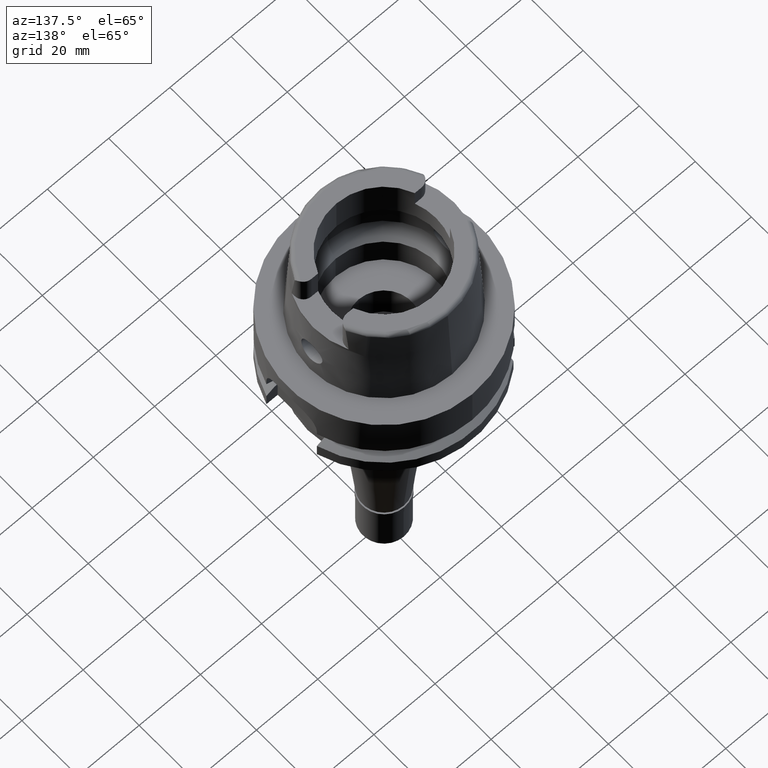
[diagram: clean part render]
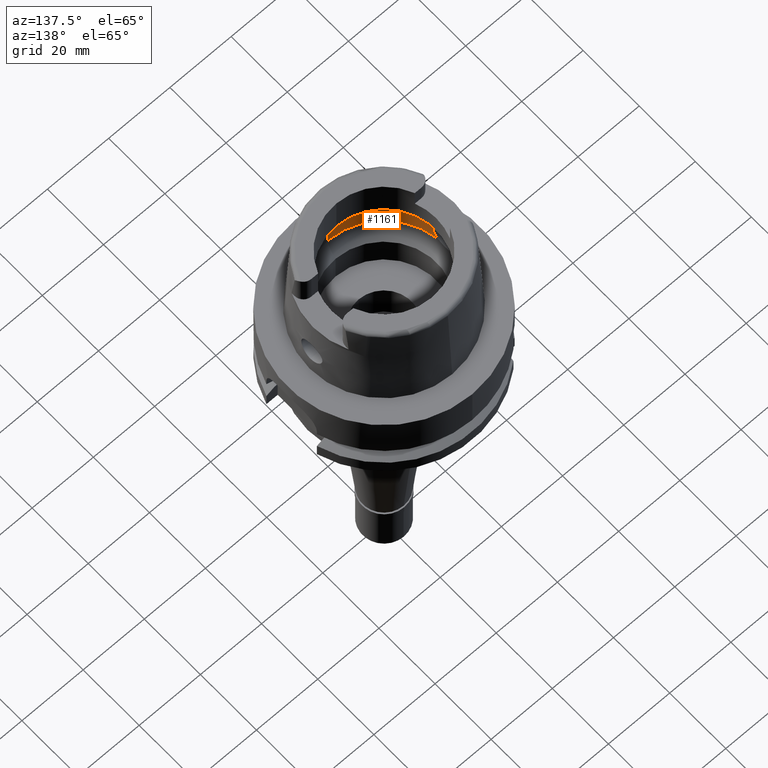
[diagram: same view with one face highlighted and labeled with its STEP entity id]
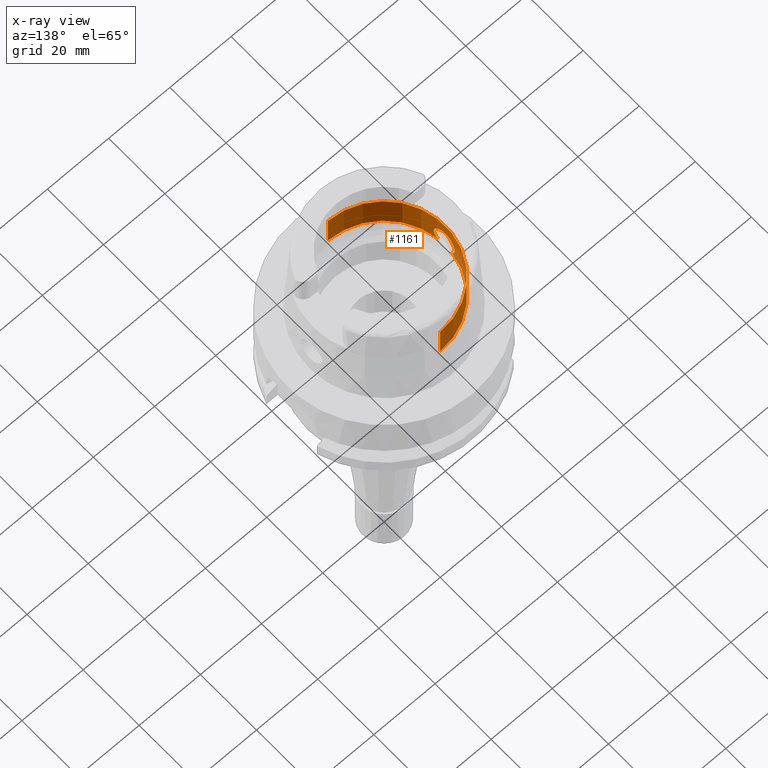
[diagram: x-ray of the same camera — body ghosted, the highlighted face saturated]
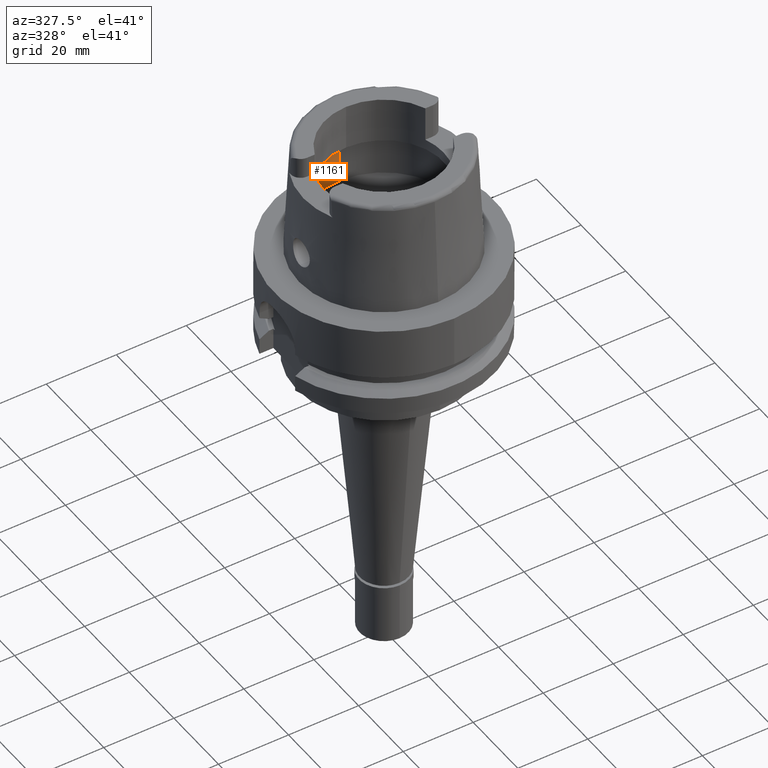
[diagram: same view with one face highlighted and labeled with its STEP entity id]
A machine part, auxiliary view. The second image highlights one B-rep face of the part: STEP entity #1161.
The next image is the same camera in x-ray: the body ghosted, the highlighted face saturated — about 5% of this face is hidden behind the body in this view.
A second angle (auxiliary view) of the same face is appended — the face is thin or edge-on in the first view.
In plain terms, the highlighted cylindrical surface (partial cylindrical patch) has radius 20 mm, axis along (0, 0, -1).
Its self-contained STEP definition (entity closure, byte-faithful):
#116 = ORIENTED_EDGE ( 'NONE', *, *, #1404, .T. ) ;
#159 = CARTESIAN_POINT ( 'NONE',  ( -19.68325729005076496, -3.546810159536054385, 7.767786943550404111 ) ) ;
#168 = CARTESIAN_POINT ( 'NONE',  ( -19.64937715234429305, 3.733899912090357986, 9.394707806724619914 ) ) ;
#195 = CARTESIAN_POINT ( 'NONE',  ( -19.64954716481034680, 3.728742102112620582, 8.458464559471295274 ) ) ;
#210 = CARTESIAN_POINT ( 'NONE',  ( -19.97035941030860329, -1.087991353669898631, 12.58872118990585953 ) ) ;
#222 = CARTESIAN_POINT ( 'NONE',  ( -19.69945940781192206, 3.454791231586219702, 10.46684535102398605 ) ) ;
#236 = DIRECTION ( 'NONE',  ( 0.0000000000000000000, 0.0000000000000000000, 1.000000000000000000 ) ) ;
#276 = CARTESIAN_POINT ( 'NONE',  ( -19.71196256676016034, 3.384522111915754028, 10.62587697034224732 ) ) ;
#519 = CARTESIAN_POINT ( 'NONE',  ( -19.90212492958304225, -1.976800070372711993, 12.18738408355483571 ) ) ;
#525 = DIRECTION ( 'NONE',  ( 0.0000000000000000000, 0.0000000000000000000, -1.000000000000000000 ) ) ;
#528 = CARTESIAN_POINT ( 'NONE',  ( -19.81720445921023099, 2.707669378195588727, 6.387751804549400170 ) ) ;
#544 = CARTESIAN_POINT ( 'NONE',  ( -19.81689720875221639, -2.708443955307053841, 11.59535658252439561 ) ) ;
#572 = CARTESIAN_POINT ( 'NONE',  ( -19.79874188325397100, -2.835848574125672705, 11.45412387156707545 ) ) ;
#635 = CARTESIAN_POINT ( 'NONE',  ( -19.68383709500267642, 3.542833394193698915, 7.767602803325100780 ) ) ;
#651 = CARTESIAN_POINT ( 'NONE',  ( -19.74050221243378900, -3.211455829723269151, 7.063750484204940783 ) ) ;
#716 = CARTESIAN_POINT ( 'NONE',  ( -19.77790227802233147, 2.972427968620638072, 11.28634230070618116 ) ) ;
#769 = ORIENTED_EDGE ( 'NONE', *, *, #3072, .F. ) ;
#771 = CARTESIAN_POINT ( 'NONE',  ( -19.98901725381953653, 0.7490706239249607101, 12.69414172080135472 ) ) ;
#775 = CARTESIAN_POINT ( 'NONE',  ( 0.0000000000000000000, -20.00000000000000000, 6.186348233825000875 ) ) ;
#794 = CIRCLE ( 'NONE', #799, 20.00000000000000000 ) ;
#799 = AXIS2_PLACEMENT_3D ( 'NONE', #1019, #236, #3221 ) ;
#814 = EDGE_CURVE ( 'NONE', #4136, #5267, #2790, .T. ) ;
#849 = ORIENTED_EDGE ( 'NONE', *, *, #814, .T. ) ;
#902 = AXIS2_PLACEMENT_3D ( 'NONE', #4308, #4029, #4083 ) ;
#923 = CARTESIAN_POINT ( 'NONE',  ( -19.97753555307598461, -0.9493749229898147401, 12.62838965606890618 ) ) ;
#948 = CARTESIAN_POINT ( 'NONE',  ( -19.94877727865467421, -1.438050476429465929, 12.46848411337186491 ) ) ;
#955 = CARTESIAN_POINT ( 'NONE',  ( -19.75172576718738782, 3.142941349337208923, 6.954144166451291298 ) ) ;
#972 = CARTESIAN_POINT ( 'NONE',  ( -19.65056778371919677, -3.724541277720386123, 8.554018805257962654 ) ) ;
#982 = CARTESIAN_POINT ( 'NONE',  ( -19.74246152409659416, 3.199407991994077438, 7.043898020967525930 ) ) ;
#1000 = CARTESIAN_POINT ( 'NONE',  ( -19.65273577250077253, -3.712391166743284732, 8.462271407313068039 ) ) ;
#1012 = CARTESIAN_POINT ( 'NONE',  ( -19.65388674909380740, 3.709331165328011881, 9.582707548844036083 ) ) ;
#1019 = CARTESIAN_POINT ( 'NONE',  ( 0.0000000000000000000, 0.0000000000000000000, 17.26397459622000241 ) ) ;
#1035 = CARTESIAN_POINT ( 'NONE',  ( -19.68809426617465874, 3.518533777516513972, 10.29713710895525836 ) ) ;
#1071 = ORIENTED_EDGE ( 'NONE', *, *, #4807, .F. ) ;
#1084 = CARTESIAN_POINT ( 'NONE',  ( -19.74095328991457876, -3.208675117827837653, 7.059148282840538968 ) ) ;
#1095 = CARTESIAN_POINT ( 'NONE',  ( -19.74290537429397219, 3.198125380064008372, 10.96088977211867999 ) ) ;
#1113 = CARTESIAN_POINT ( 'NONE',  ( 0.0000000000000000000, 20.00000000000000000, 6.186348233825000875 ) ) ;
#1161 = ADVANCED_FACE ( 'NONE', ( #1406 ), #3078, .F. ) ;
#1180 = CARTESIAN_POINT ( 'NONE',  ( -19.94912526910875883, 1.477053608235867843, 12.46786713865884622 ) ) ;
#1211 = VERTEX_POINT ( 'NONE', #4468 ) ;
#1312 = AXIS2_PLACEMENT_3D ( 'NONE', #1391, #525, #5202 ) ;
#1332 = VERTEX_POINT ( 'NONE', #775 ) ;
#1357 = CARTESIAN_POINT ( 'NONE',  ( -19.92059286601120149, -1.781155040627679265, 12.30151905550233060 ) ) ;
#1385 = CARTESIAN_POINT ( 'NONE',  ( -19.65132276798684785, -3.723721195852286225, 9.580998649946268486 ) ) ;
#1391 = CARTESIAN_POINT ( 'NONE',  ( 0.0000000000000000000, 0.0000000000000000000, 6.186348233825000875 ) ) ;
#1404 = EDGE_CURVE ( 'NONE', #1332, #5150, #1861, .T. ) ;
#1406 = FACE_OUTER_BOUND ( 'NONE', #3470, .T. ) ;
#1415 = CARTESIAN_POINT ( 'NONE',  ( -19.88866688963722140, -2.107477370787168791, 12.10180777658723628 ) ) ;
#1456 = CARTESIAN_POINT ( 'NONE',  ( -19.67957488283677847, 3.566282307828330111, 10.16110460878165433 ) ) ;
#1542 = CARTESIAN_POINT ( 'NONE',  ( -20.00000000000000000, 0.0000000000000000000, 12.75000000000000000 ) ) ;
#1558 = CARTESIAN_POINT ( 'NONE',  ( -19.73913269784763713, -3.219886689848268535, 7.077786526257662914 ) ) ;
#1583 = CARTESIAN_POINT ( 'NONE',  ( -19.73723018012562491, -3.231571074794255427, 7.097436891680587223 ) ) ;
#1769 = CARTESIAN_POINT ( 'NONE',  ( -19.85235822213364543, -2.434144070148053007, 11.85895443194822896 ) ) ;
#1800 = CARTESIAN_POINT ( 'NONE',  ( -19.71528923512004994, -3.361056488591420699, 10.67384906870306516 ) ) ;
#1822 = CARTESIAN_POINT ( 'NONE',  ( -19.98647302120704694, -0.7405267939923131371, 12.67738902970857495 ) ) ;
#1850 = CARTESIAN_POINT ( 'NONE',  ( -19.76218569956651550, -3.070486696400240412, 11.16078934170093362 ) ) ;
#1861 = CIRCLE ( 'NONE', #4920, 20.00000000000000000 ) ;
#1881 = CARTESIAN_POINT ( 'NONE',  ( -20.00000000000000000, -0.1830374027275975257, 12.75000000000000178 ) ) ;
#1892 = CARTESIAN_POINT ( 'NONE',  ( -19.74139749652901088, 3.205938543897220772, 7.054631262626102739 ) ) ;
#1948 = CARTESIAN_POINT ( 'NONE',  ( -19.86862495637770820, 2.282732825389080400, 11.97668784721070523 ) ) ;
#1987 = CARTESIAN_POINT ( 'NONE',  ( 0.0000000000000000000, 20.00000000000000000, 6.186348233825000875 ) ) ;
#2010 = LINE ( 'NONE', #2162, #2988 ) ;
#2138 = ORIENTED_EDGE ( 'NONE', *, *, #3663, .F. ) ;
#2162 = CARTESIAN_POINT ( 'NONE',  ( 0.0000000000000000000, -20.00000000000000000, 6.186348233825000875 ) ) ;
#2175 = CARTESIAN_POINT ( 'NONE',  ( -19.89095883369450135, -2.085707927097196102, 12.11648757323384196 ) ) ;
#2188 = CARTESIAN_POINT ( 'NONE',  ( -19.66678412835872081, 3.635577116850056356, 8.080432954029168613 ) ) ;
#2210 = CARTESIAN_POINT ( 'NONE',  ( -19.74555934841687943, -3.175023028459864616, 11.00442016380054078 ) ) ;
#2238 = CARTESIAN_POINT ( 'NONE',  ( -19.67326667945649632, -3.600530094029106287, 7.938450481840925832 ) ) ;
#2250 = CARTESIAN_POINT ( 'NONE',  ( -19.67634535197404233, 3.583810239029157074, 7.895103173153110276 ) ) ;
#2262 = CARTESIAN_POINT ( 'NONE',  ( -19.98067574458150020, -0.8798093234653254768, 12.64564165222719971 ) ) ;
#2272 = CARTESIAN_POINT ( 'NONE',  ( -19.74126825963656628, 3.206732319066041281, 7.055937602687013310 ) ) ;
#2291 = CARTESIAN_POINT ( 'NONE',  ( -19.88739450431940980, -2.119451192537781470, 12.09363345630605124 ) ) ;
#2299 = CARTESIAN_POINT ( 'NONE',  ( -19.66968970457880062, 3.619880684907427426, 8.020500591788675138 ) ) ;
#2315 = B_SPLINE_CURVE_WITH_KNOTS ( 'NONE', 3,
 ( #4694, #1881, #3119, #4666, #1822, #2262, #923, #2593, #4256, #210, #4370, #3034, #948, #5163, #1357, #3056, #519, #2706, #2175, #1415, #2291, #2619, #1769, #4750, #544, #3088, #572, #3940, #3888, #1850, #2210, #1800, #3479, #5138, #1385, #4718, #3861, #972, #1000, #4346, #2649, #3453, #4316, #3919, #2238, #159, #3536, #4776, #5194, #2369, #4504, #1583, #1558, #3224, #651, #1084, #3248, #2765, #5249, #5334, #3139 ),
 .UNSPECIFIED., .F., .F.,
 ( 4, 2, 2, 1, 1, 2, 2, 2, 2, 1, 1, 2, 2, 2, 2, 2, 2, 2, 2, 2, 2, 2, 1, 2, 2, 2, 2, 1, 1, 1, 1, 2, 2, 2, 4 ),
 ( 0.0000000000000000000, 0.06249999999999843181, 0.09374999999999766853, 0.1093749999999972522, 0.1171874999999970995, 0.1210937499999970302, 0.1249999999999969469, 0.1874999999999974742, 0.2187499999999979183, 0.2343749999999980294, 0.2421874999999980294, 0.2460937499999981404, 0.2499999999999982236, 0.3125000000000015543, 0.3437500000000033862, 0.3593750000000043299, 0.3750000000000052180, 0.4375000000000093259, 0.5000000000000134337, 0.6250000000000222045, 0.6875000000000263123, 0.7187500000000280886, 0.7343750000000289768, 0.7421875000000296430, 0.7500000000000303091, 0.8125000000000363043, 0.8437500000000393019, 0.8593750000000407452, 0.8671875000000414113, 0.8710937500000418554, 0.8730468750000419664, 0.8740234375000418554, 0.8750000000000418554, 0.9375000000000209832, 1.000000000000000000 ),
 .UNSPECIFIED. ) ;
#2329 = CARTESIAN_POINT ( 'NONE',  ( -19.77539119383673949, 2.989117935973896856, 11.26447855133931242 ) ) ;
#2369 = CARTESIAN_POINT ( 'NONE',  ( -19.72618078752373094, -3.298772090235122967, 7.215285736698796804 ) ) ;
#2472 = ORIENTED_EDGE ( 'NONE', *, *, #3380, .T. ) ;
#2581 = ORIENTED_EDGE ( 'NONE', *, *, #4547, .T. ) ;
#2593 = CARTESIAN_POINT ( 'NONE',  ( -19.97344927823229099, -1.030302235349707551, 12.60582713086796325 ) ) ;
#2603 = CARTESIAN_POINT ( 'NONE',  ( -19.76800539640649745, 3.041645519385684171, 6.804563479175808283 ) ) ;
#2619 = CARTESIAN_POINT ( 'NONE',  ( -19.86957894625532717, -2.285807393788554798, 11.97888609334855303 ) ) ;
#2649 = CARTESIAN_POINT ( 'NONE',  ( -19.65926970904828863, -3.676378179055857398, 8.258084935742266097 ) ) ;
#2661 = CARTESIAN_POINT ( 'NONE',  ( -19.70827425312383951, 3.405308951745375623, 7.418193022220812338 ) ) ;
#2685 = DIRECTION ( 'NONE',  ( 0.0000000000000000000, -1.000000000000000000, 0.0000000000000000000 ) ) ;
#2692 = CARTESIAN_POINT ( 'NONE',  ( -19.66443747692036936, 3.650826014190178270, 9.861983677049995123 ) ) ;
#2706 = CARTESIAN_POINT ( 'NONE',  ( -19.89436833451610553, -2.053045156930961124, 12.13826361835606704 ) ) ;
#2715 = CARTESIAN_POINT ( 'NONE',  ( -19.74408197365325890, 3.189507712982236676, 7.027753376479043190 ) ) ;
#2765 = CARTESIAN_POINT ( 'NONE',  ( -19.75931482893718183, -3.098994408684831114, 6.879885751149189765 ) ) ;
#2790 = LINE ( 'NONE', #1987, #3442 ) ;
#2802 = CARTESIAN_POINT ( 'NONE',  ( -19.76315527148295459, 3.069536634654139284, 11.15533732830285985 ) ) ;
#2830 = CARTESIAN_POINT ( 'NONE',  ( -19.84575864665999845, -2.479085262491000030, 6.186348233825000875 ) ) ;
#2856 = CARTESIAN_POINT ( 'NONE',  ( -19.81550395940524822, 2.709931638705312729, 11.59902467878870524 ) ) ;
#2978 = CIRCLE ( 'NONE', #1312, 20.00000000000001421 ) ;
#2988 = VECTOR ( 'NONE', #4266, 1000.000000000000000 ) ;
#3034 = CARTESIAN_POINT ( 'NONE',  ( -19.96014161960296462, -1.270885893305002234, 12.53204756573847156 ) ) ;
#3056 = CARTESIAN_POINT ( 'NONE',  ( -19.90843245646873783, -1.911487754341263612, 12.22664297733000005 ) ) ;
#3072 = EDGE_CURVE ( 'NONE', #3143, #5150, #2315, .T. ) ;
#3078 = CYLINDRICAL_SURFACE ( 'NONE', #902, 20.00000000000000000 ) ;
#3088 = CARTESIAN_POINT ( 'NONE',  ( -19.80330195556890871, -2.804498991971097865, 11.48988885623557721 ) ) ;
#3097 = CARTESIAN_POINT ( 'NONE',  ( -19.76066155450057593, 3.087763051679031978, 6.870999059455045632 ) ) ;
#3119 = CARTESIAN_POINT ( 'NONE',  ( -19.99742343261086575, -0.3685791477801201310, 12.73657481896783672 ) ) ;
#3128 = CARTESIAN_POINT ( 'NONE',  ( -19.68444674238986636, 3.538983957956474136, 10.24060615407549513 ) ) ;
#3139 = CARTESIAN_POINT ( 'NONE',  ( -19.84575864665999845, -2.479085262491000030, 6.186348233825000875 ) ) ;
#3143 = VERTEX_POINT ( 'NONE', #4915 ) ;
#3148 = CARTESIAN_POINT ( 'NONE',  ( -19.66767022583596258, 3.630792343530951705, 8.061755777097875608 ) ) ;
#3210 = CARTESIAN_POINT ( 'NONE',  ( -19.85086403912583464, 2.430644520605066639, 11.85718513685992548 ) ) ;
#3221 = DIRECTION ( 'NONE',  ( 0.0000000000000000000, 1.000000000000000000, 0.0000000000000000000 ) ) ;
#3224 = CARTESIAN_POINT ( 'NONE',  ( -19.73995366024477960, -3.214834176857670034, 7.069364884555334960 ) ) ;
#3232 = CARTESIAN_POINT ( 'NONE',  ( -19.77935155496617980, 2.962756445005690686, 11.29885090703220563 ) ) ;
#3248 = CARTESIAN_POINT ( 'NONE',  ( -19.74741042856391360, -3.168852578877737969, 6.993359328543429676 ) ) ;
#3380 = EDGE_CURVE ( 'NONE', #4106, #4136, #2978, .T. ) ;
#3442 = VECTOR ( 'NONE', #4149, 1000.000000000000000 ) ;
#3453 = CARTESIAN_POINT ( 'NONE',  ( -19.66196024749880777, -3.661720070425486639, 8.190782839368196733 ) ) ;
#3465 = CARTESIAN_POINT ( 'NONE',  ( -19.84575864665999845, 2.479085262491000030, 6.186348233825000875 ) ) ;
#3470 = EDGE_LOOP ( 'NONE', ( #2138, #2472, #849, #2581, #1071, #116, #769 ) ) ;
#3479 = CARTESIAN_POINT ( 'NONE',  ( -19.70155893500701438, -3.443033485245206027, 10.49835442281335318 ) ) ;
#3509 = DIRECTION ( 'NONE',  ( 0.0000000000000000000, 0.0000000000000000000, -1.000000000000000000 ) ) ;
#3516 = CARTESIAN_POINT ( 'NONE',  ( -19.74566592812352539, 3.179869713825075994, 7.012262826264466398 ) ) ;
#3536 = CARTESIAN_POINT ( 'NONE',  ( -19.70206454124530637, -3.440427089249093573, 7.505045393789741226 ) ) ;
#3573 = CARTESIAN_POINT ( 'NONE',  ( -19.79419687321562904, 2.868810270552524688, 6.577475787150334874 ) ) ;
#3624 = CARTESIAN_POINT ( 'NONE',  ( -19.92158658099006630, 1.820136556159460683, 12.29994162937416391 ) ) ;
#3656 = CARTESIAN_POINT ( 'NONE',  ( -19.84200668832606240, 2.502326833197709544, 11.79461985101926125 ) ) ;
#3663 = EDGE_CURVE ( 'NONE', #4106, #3143, #3825, .T. ) ;
#3825 = B_SPLINE_CURVE_WITH_KNOTS ( 'NONE', 3,
 ( #3465, #528, #3573, #2603, #3097, #955, #4730, #3516, #2715, #982, #4761, #1892, #4383, #2272, #3950, #2661, #4329, #635, #2250, #3930, #2299, #3148, #2188, #195, #4265, #168, #1012, #2692, #3873, #5206, #1456, #3128, #4786, #1035, #3978, #222, #276, #4464, #1095, #5261, #2802, #4102, #2329, #716, #3232, #4816, #2856, #3656, #3210, #1948, #4514, #3624, #1180, #771, #4842, #1542 ),
 .UNSPECIFIED., .F., .F.,
 ( 4, 2, 2, 2, 1, 1, 1, 2, 2, 2, 2, 1, 2, 2, 2, 2, 2, 1, 1, 2, 2, 2, 2, 1, 1, 2, 2, 2, 2, 2, 2, 4 ),
 ( 0.0000000000000000000, 0.06249999999996729005, 0.09374999999995088651, 0.1093749999999424488, 0.1171874999999383132, 0.1210937499999362316, 0.1230468749999356765, 0.1240234374999356487, 0.1249999999999356348, 0.1874999999999328593, 0.2187499999999316658, 0.2343749999999311939, 0.2421874999999309719, 0.2499999999999307776, 0.3749999999999310552, 0.4374999999999312217, 0.4687499999999313327, 0.4843749999999313327, 0.4921874999999316658, 0.4960937499999314992, 0.4999999999999312772, 0.5624999999999324984, 0.5937499999999331646, 0.6093749999999333866, 0.6171874999999338307, 0.6210937499999341638, 0.6249999999999346079, 0.6874999999999457101, 0.7187499999999512612, 0.7499999999999567013, 0.8749999999999783507, 1.000000000000000000 ),
 .UNSPECIFIED. ) ;
#3861 = CARTESIAN_POINT ( 'NONE',  ( -19.64595634513333522, -3.750786648821366587, 8.831099623891594419 ) ) ;
#3873 = CARTESIAN_POINT ( 'NONE',  ( -19.66858544164626110, 3.627720868791794562, 9.954619891844373569 ) ) ;
#3888 = CARTESIAN_POINT ( 'NONE',  ( -19.78483275663007035, -2.927859734515844803, 11.34356295429619088 ) ) ;
#3919 = CARTESIAN_POINT ( 'NONE',  ( -19.66489324401530681, -3.645798712243137452, 8.121881304959334358 ) ) ;
#3930 = CARTESIAN_POINT ( 'NONE',  ( -19.67283836492640603, 3.602859295254701166, 7.958282118311767128 ) ) ;
#3940 = CARTESIAN_POINT ( 'NONE',  ( -19.78956509611641579, -2.897164855132418726, 11.38142749512797636 ) ) ;
#3950 = CARTESIAN_POINT ( 'NONE',  ( -19.72335944578466282, 3.317162635733305720, 7.238452612100625849 ) ) ;
#3978 = CARTESIAN_POINT ( 'NONE',  ( -19.68897814375816324, 3.513576952983802570, 10.31048599730169535 ) ) ;
#4029 = DIRECTION ( 'NONE',  ( 0.0000000000000000000, 0.0000000000000000000, -1.000000000000000000 ) ) ;
#4083 = DIRECTION ( 'NONE',  ( 0.0000000000000000000, -1.000000000000000000, 0.0000000000000000000 ) ) ;
#4102 = CARTESIAN_POINT ( 'NONE',  ( -19.77165548677519880, 3.013857183849337318, 11.23169622625515984 ) ) ;
#4106 = VERTEX_POINT ( 'NONE', #4802 ) ;
#4136 = VERTEX_POINT ( 'NONE', #1113 ) ;
#4149 = DIRECTION ( 'NONE',  ( 0.0000000000000000000, -8.659189811027998955E-14, 1.000000000000000000 ) ) ;
#4256 = CARTESIAN_POINT ( 'NONE',  ( -19.97160743513772374, -1.064924551475929348, 12.59563355532840667 ) ) ;
#4265 = CARTESIAN_POINT ( 'NONE',  ( -19.64342102750028829, 3.765030220294263597, 8.831896861832086998 ) ) ;
#4266 = DIRECTION ( 'NONE',  ( 0.0000000000000000000, 8.659189811027998955E-14, 1.000000000000000000 ) ) ;
#4289 = CARTESIAN_POINT ( 'NONE',  ( 0.0000000000000000000, 0.0000000000000000000, 6.186348233825000875 ) ) ;
#4308 = CARTESIAN_POINT ( 'NONE',  ( 0.0000000000000000000, 0.0000000000000000000, 39.39999999999999858 ) ) ;
#4316 = CARTESIAN_POINT ( 'NONE',  ( -19.66383279512244187, -3.651545459906774926, 8.146043302355408855 ) ) ;
#4329 = CARTESIAN_POINT ( 'NONE',  ( -19.68946861559959771, 3.511676168785395458, 7.681073891936414988 ) ) ;
#4346 = CARTESIAN_POINT ( 'NONE',  ( -19.65693401955254416, -3.689208492896102420, 8.325933423525599508 ) ) ;
#4370 = CARTESIAN_POINT ( 'NONE',  ( -19.96963991456336629, -1.101044773657175790, 12.58473288045517435 ) ) ;
#4383 = CARTESIAN_POINT ( 'NONE',  ( -19.74119308675011197, 3.207196494403046660, 7.056705859143716175 ) ) ;
#4464 = CARTESIAN_POINT ( 'NONE',  ( -19.73467496494074425, 3.248548794679534168, 10.87574576922624203 ) ) ;
#4468 = CARTESIAN_POINT ( 'NONE',  ( 0.0000000000000000000, -20.00000000000000000, 17.26397459622000241 ) ) ;
#4504 = CARTESIAN_POINT ( 'NONE',  ( -19.73347738950019448, -3.254522546019890328, 7.136733759208673256 ) ) ;
#4514 = CARTESIAN_POINT ( 'NONE',  ( -19.87767235113758346, 2.205242223471557406, 12.03449459973810853 ) ) ;
#4547 = EDGE_CURVE ( 'NONE', #5267, #1211, #794, .T. ) ;
#4666 = CARTESIAN_POINT ( 'NONE',  ( -19.98969373044346298, -0.6474711021227954610, 12.69487708366551004 ) ) ;
#4668 = CARTESIAN_POINT ( 'NONE',  ( 0.0000000000000000000, 20.00000000000000000, 17.26397459622000241 ) ) ;
#4694 = CARTESIAN_POINT ( 'NONE',  ( -20.00000000000000000, 0.0000000000000000000, 12.75000000000000000 ) ) ;
#4718 = CARTESIAN_POINT ( 'NONE',  ( -19.64540542308788318, -3.754657844809986766, 9.018281474956083343 ) ) ;
#4730 = CARTESIAN_POINT ( 'NONE',  ( -19.74909383400726881, 3.158992222811243256, 6.979121475390856588 ) ) ;
#4750 = CARTESIAN_POINT ( 'NONE',  ( -19.82584742585908089, -2.641731283860129231, 11.66323117160772327 ) ) ;
#4761 = CARTESIAN_POINT ( 'NONE',  ( -19.74170817364958097, 3.204028385776987786, 7.051484459670502858 ) ) ;
#4776 = CARTESIAN_POINT ( 'NONE',  ( -19.70897051419402146, -3.400666924062230478, 7.416360639844333136 ) ) ;
#4786 = CARTESIAN_POINT ( 'NONE',  ( -19.68662342437104940, 3.526780936312673642, 10.27454338891028485 ) ) ;
#4802 = CARTESIAN_POINT ( 'NONE',  ( -19.84575864665999845, 2.479085262491000030, 6.186348233825000875 ) ) ;
#4807 = EDGE_CURVE ( 'NONE', #1332, #1211, #2010, .T. ) ;
#4816 = CARTESIAN_POINT ( 'NONE',  ( -19.79792790476268394, 2.838396307254650530, 11.45808160370313900 ) ) ;
#4842 = CARTESIAN_POINT ( 'NONE',  ( -20.00000000000000000, 0.3697421889626048563, 12.75000000000000178 ) ) ;
#4915 = CARTESIAN_POINT ( 'NONE',  ( -20.00000000000000000, 0.0000000000000000000, 12.75000000000000000 ) ) ;
#4920 = AXIS2_PLACEMENT_3D ( 'NONE', #4289, #3509, #2685 ) ;
#5138 = CARTESIAN_POINT ( 'NONE',  ( -19.66536114596662443, -3.646001608969120955, 9.957786246994009716 ) ) ;
#5150 = VERTEX_POINT ( 'NONE', #2830 ) ;
#5163 = CARTESIAN_POINT ( 'NONE',  ( -19.92809361340097851, -1.694661713830789118, 12.34657877242477397 ) ) ;
#5194 = CARTESIAN_POINT ( 'NONE',  ( -19.72028480744285872, -3.333920895591516942, 7.282455604707831043 ) ) ;
#5202 = DIRECTION ( 'NONE',  ( -0.9922879323327794543, 0.1239542631244973381, 0.0000000000000000000 ) ) ;
#5206 = CARTESIAN_POINT ( 'NONE',  ( -19.67575397191066955, 3.587661714842810934, 10.09246184363310306 ) ) ;
#5249 = CARTESIAN_POINT ( 'NONE',  ( -19.79421683432078183, -2.868663948532231167, 6.577311839375206581 ) ) ;
#5261 = CARTESIAN_POINT ( 'NONE',  ( -19.75624040326336939, 3.113840710160728165, 11.09024991161296825 ) ) ;
#5267 = VERTEX_POINT ( 'NONE', #4668 ) ;
#5334 = CARTESIAN_POINT ( 'NONE',  ( -19.81721443933112781, -2.707589484558639903, 6.387681410927736003 ) ) ;